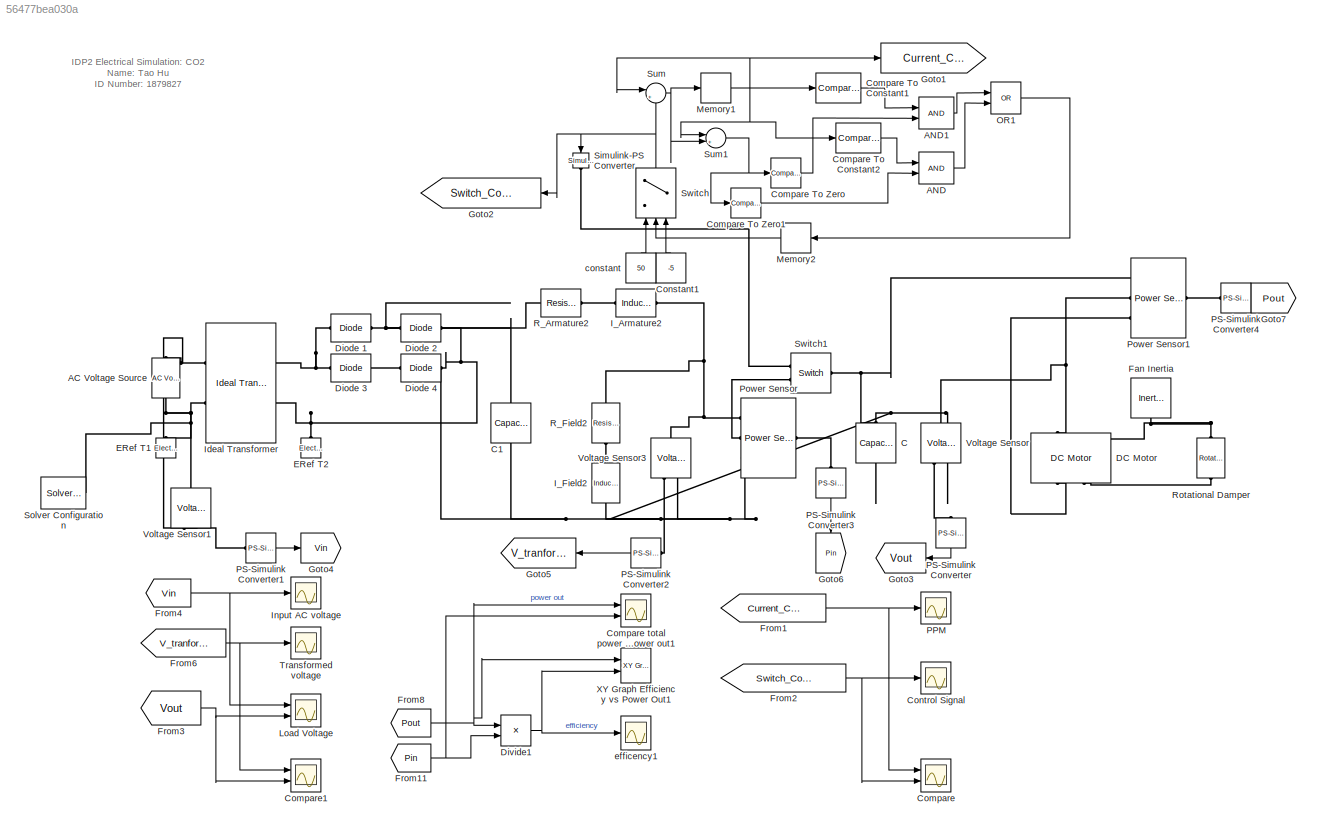
MODEL slx_56477bea030a
KIND model
CONFIG AbsTol = 1e-3
CONFIG EnableMultiTasking = on
CONFIG FixedStep = 0.0005
CONFIG MaxStep = 0.01
CONFIG MinStep = auto
CONFIG RelTol = 1e-3
CONFIG SampleTimeConstraint = Unconstrained
CONFIG Solver = FixedStepAuto
CONFIG SolverName = FixedStepAuto
CONFIG StartTime = 0.0
CONFIG StopTime = 0.5
BLOCK [Reference] AC Voltage Source  REF=fl_lib/Electrical/Electrical Sources/AC Voltage Source
  NameLocation = left
  Ports = [0, 0, 0, 0, 0, 1, 1]
  SourceBlock = fl_lib/Electrical/Electrical Sources/AC Voltage Source
  SourceProductBaseCode = SS
  SourceType = AC Voltage Source
BLOCK [Logic] AND
  AllPortsSameDT = off
  IconShape = distinctive
  OutDataTypeStr = boolean
  Ports = [2, 1]
BLOCK [Logic] AND1
  AllPortsSameDT = off
  IconShape = distinctive
  OutDataTypeStr = boolean
  Ports = [2, 1]
BLOCK [Reference] C  REF=fl_lib/Electrical/Electrical Elements/Capacitor
  NameLocation = left
  Ports = [0, 0, 0, 0, 0, 1, 1]
  SourceBlock = fl_lib/Electrical/Electrical Elements/Capacitor
  SourceProductBaseCode = SS
  SourceType = Capacitor
BLOCK [Reference] C1  REF=fl_lib/Electrical/Electrical Elements/Capacitor
  NameLocation = left
  Ports = [0, 0, 0, 0, 0, 1, 1]
  SourceBlock = fl_lib/Electrical/Electrical Elements/Capacitor
  SourceProductBaseCode = SS
  SourceType = Capacitor
BLOCK [Scope] Compare
  Floating = off
  NumInputPorts = 2
  Ports = [2]
  ScopeSpecificationString = Simulink.scopes.TimeScopeBlockCfg('CurrentConfiguration', extmgr.ConfigurationSet(extmgr.Configuration('Core','General UI',true),extmgr.Configuration('Core','Source UI',true),extmgr.Configuration('Sources','WiredSimulink',true,'DataLoggingVariableName','ScopeData3'),extmgr.Configuration('Visuals','Time Domain',true,'SerializedDisplays',{struct('MinYLimReal','-133.75','MaxYLimReal','1153.75','YLabe...<+1375ch>
BLOCK [Reference] Compare To Constant1  REF=simulink/Logic and Bit
Operations/Compare
To Constant
  Ports = [1, 1]
  SourceBlock = simulink/Logic and Bit\nOperations/Compare\nTo Constant
  SourceProductBaseCode = SL
  SourceType = Compare To Constant
BLOCK [Reference] Compare To Constant2  REF=simulink/Logic and Bit
Operations/Compare
To Constant
  Ports = [1, 1]
  SourceBlock = simulink/Logic and Bit\nOperations/Compare\nTo Constant
  SourceProductBaseCode = SL
  SourceType = Compare To Constant
BLOCK [Reference] Compare To Zero  REF=simulink/Logic and Bit
Operations/Compare
To Zero
  Ports = [1, 1]
  SourceBlock = simulink/Logic and Bit\nOperations/Compare\nTo Zero
  SourceProductBaseCode = SL
  SourceType = Compare To Zero
BLOCK [Reference] Compare To Zero1  REF=simulink/Logic and Bit
Operations/Compare
To Zero
  Ports = [1, 1]
  SourceBlock = simulink/Logic and Bit\nOperations/Compare\nTo Zero
  SourceProductBaseCode = SL
  SourceType = Compare To Zero
BLOCK [Scope] Compare total power vs power out1
  Floating = off
  NumInputPorts = 2
  Ports = [2]
  ScopeSpecificationString = Simulink.scopes.TimeScopeBlockCfg('CurrentConfiguration', extmgr.ConfigurationSet(extmgr.Configuration('Core','General UI',true),extmgr.Configuration('Core','Source UI',true),extmgr.Configuration('Sources','WiredSimulink',true,'DataLoggingVariableName','ScopeData1'),extmgr.Configuration('Visuals','Time Domain',true,'SerializedDisplays',{struct('MinYLimReal','-0.125','MaxYLimReal','1.125','YLabelRe...<+1456ch>
BLOCK [Scope] Compare1
  Floating = off
  NumInputPorts = 2
  Ports = [2]
  ScopeSpecificationString = Simulink.scopes.TimeScopeBlockCfg('CurrentConfiguration', extmgr.ConfigurationSet(extmgr.Configuration('Core','General UI',true),extmgr.Configuration('Core','Source UI',true),extmgr.Configuration('Sources','WiredSimulink',true,'DataLoggingVariableName','ScopeData5'),extmgr.Configuration('Visuals','Time Domain',true,'SerializedDisplays',{struct('MinYLimReal','-47262866.4728','MaxYLimReal','42536579...<+1498ch>
BLOCK [Constant] Constant1
  NameLocation = right
  Value = -5
BLOCK [Scope] Control Signal
  Floating = off
  NumInputPorts = 1
  Ports = [1]
  ScopeSpecificationString = Simulink.scopes.TimeScopeBlockCfg('CurrentConfiguration', extmgr.ConfigurationSet(extmgr.Configuration('Core','General UI',true),extmgr.Configuration('Core','Source UI',true),extmgr.Configuration('Sources','WiredSimulink',true,'DataLoggingLimitDataPoints',true,'DataLoggingSaveFormat','Array','DataLoggingDecimation','1','DataLoggingDecimateData',true,'DataLoggingVariableName','ScopeData1'),extmgr.C...<+1673ch>
BLOCK [Reference] DC Motor  REF=ee_lib/Electromechanical/Brushed Motors/DC Motor
  NameLocation = right
  Ports = [0, 0, 0, 0, 0, 2, 2]
  SourceBlock = ee_lib/Electromechanical/Brushed Motors/DC Motor
  SourceProductBaseCode = PS
  SourceType = DC Motor
BLOCK [Reference] Diode 1  REF=fl_lib/Electrical/Electrical Elements/Diode
  NameLocation = top
  Ports = [0, 0, 0, 0, 0, 1, 1]
  SourceBlock = fl_lib/Electrical/Electrical Elements/Diode
  SourceProductBaseCode = SS
  SourceType = Diode
BLOCK [Reference] Diode 2  REF=fl_lib/Electrical/Electrical Elements/Diode
  NameLocation = top
  Ports = [0, 0, 0, 0, 0, 1, 1]
  SourceBlock = fl_lib/Electrical/Electrical Elements/Diode
  SourceProductBaseCode = SS
  SourceType = Diode
BLOCK [Reference] Diode 3  REF=fl_lib/Electrical/Electrical Elements/Diode
  Ports = [0, 0, 0, 0, 0, 1, 1]
  SourceBlock = fl_lib/Electrical/Electrical Elements/Diode
  SourceProductBaseCode = SS
  SourceType = Diode
BLOCK [Reference] Diode 4  REF=fl_lib/Electrical/Electrical Elements/Diode
  Ports = [0, 0, 0, 0, 0, 1, 1]
  SourceBlock = fl_lib/Electrical/Electrical Elements/Diode
  SourceProductBaseCode = SS
  SourceType = Diode
BLOCK [Product] Divide1
  Inputs = */
  Ports = [2, 1]
BLOCK [Reference] ERef T1  REF=fl_lib/Electrical/Electrical Elements/Electrical Reference
  NameLocation = left
  Ports = [0, 0, 0, 0, 0, 1]
  SourceBlock = fl_lib/Electrical/Electrical Elements/Electrical Reference
  SourceProductBaseCode = SS
  SourceType = Electrical Reference
BLOCK [Reference] ERef T2  REF=fl_lib/Electrical/Electrical Elements/Electrical Reference
  NameLocation = right
  Ports = [0, 0, 0, 0, 0, 1]
  SourceBlock = fl_lib/Electrical/Electrical Elements/Electrical Reference
  SourceProductBaseCode = SS
  SourceType = Electrical Reference
BLOCK [Reference] Fan Inertia  REF=fl_lib/Mechanical/Rotational Elements/Inertia
  NameLocation = left
  Ports = [0, 0, 0, 0, 0, 1]
  SourceBlock = fl_lib/Mechanical/Rotational Elements/Inertia
  SourceProductBaseCode = SS
  SourceType = Inertia
BLOCK [From] From1
  GotoTag = Current_CO2_ppm
BLOCK [From] From11
  GotoTag = Pin
BLOCK [From] From2
  GotoTag = Switch_Control_Signal
BLOCK [From] From3
  GotoTag = Vout
BLOCK [From] From4
  GotoTag = Vin
BLOCK [From] From6
  GotoTag = V_tranformed
BLOCK [From] From8
  GotoTag = Pout
BLOCK [Goto] Goto1
  GotoTag = Current_CO2_ppm
BLOCK [Goto] Goto2
  GotoTag = Switch_Control_Signal
  NameLocation = top
BLOCK [Goto] Goto3
  GotoTag = Vout
  NameLocation = top
BLOCK [Goto] Goto4
  GotoTag = Vin
BLOCK [Goto] Goto5
  GotoTag = V_tranformed
  NameLocation = top
BLOCK [Goto] Goto6
  GotoTag = Pin
  NameLocation = left
BLOCK [Goto] Goto7
  GotoTag = Pout
BLOCK [Reference] I_Armature2  REF=fl_lib/Electrical/Electrical Elements/Inductor
  Ports = [0, 0, 0, 0, 0, 1, 1]
  SourceBlock = fl_lib/Electrical/Electrical Elements/Inductor
  SourceProductBaseCode = SS
  SourceType = Inductor
BLOCK [Reference] I_Field2  REF=fl_lib/Electrical/Electrical Elements/Inductor
  NameLocation = left
  Ports = [0, 0, 0, 0, 0, 1, 1]
  SourceBlock = fl_lib/Electrical/Electrical Elements/Inductor
  SourceProductBaseCode = SS
  SourceType = Inductor
BLOCK [Reference] Ideal Transformer  REF=fl_lib/Electrical/Electrical Elements/Ideal Transformer
  NameLocation = top
  Ports = [0, 0, 0, 0, 0, 2, 2]
  SourceBlock = fl_lib/Electrical/Electrical Elements/Ideal Transformer
  SourceProductBaseCode = SS
  SourceType = Ideal Transformer
BLOCK [Scope] Input AC voltage
  Floating = off
  NumInputPorts = 1
  Ports = [1]
  ScopeSpecificationString = Simulink.scopes.TimeScopeBlockCfg('CurrentConfiguration', extmgr.ConfigurationSet(extmgr.Configuration('Core','General UI',true),extmgr.Configuration('Core','Source UI',true),extmgr.Configuration('Sources','WiredSimulink',true,'DataLoggingVariableName','ScopeData2'),extmgr.Configuration('Visuals','Time Domain',true,'SerializedDisplays',{struct('MinYLimReal','-275.00000','MaxYLimReal','275.00000','...<+1395ch>
BLOCK [Scope] Load Voltage
  Floating = off
  NumInputPorts = 2
  Ports = [2]
  ScopeSpecificationString = Simulink.scopes.TimeScopeBlockCfg('CurrentConfiguration', extmgr.ConfigurationSet(extmgr.Configuration('Core','General UI',true),extmgr.Configuration('Core','Source UI',true),extmgr.Configuration('Sources','WiredSimulink',true,'DataLoggingLimitDataPoints',true,'DataLoggingSaveFormat','Array','DataLoggingDecimation','1','DataLoggingDecimateData',true,'DataLoggingVariableName','ScopeData7'),extmgr.C...<+1779ch>
BLOCK [Memory] Memory1
  InitialCondition = 1010
BLOCK [Memory] Memory2
  NameLocation = top
BLOCK [Logic] OR1
  AllPortsSameDT = off
  IconShape = distinctive
  Operator = OR
  OutDataTypeStr = boolean
  Ports = [2, 1]
BLOCK [Scope] PPM
  Floating = off
  NumInputPorts = 1
  Ports = [1]
  ScopeSpecificationString = Simulink.scopes.TimeScopeBlockCfg('CurrentConfiguration', extmgr.ConfigurationSet(extmgr.Configuration('Core','General UI',true),extmgr.Configuration('Core','Source UI',true),extmgr.Configuration('Sources','WiredSimulink',true,'DataLoggingLimitDataPoints',true,'DataLoggingSaveFormat','Array','DataLoggingDecimation','1','DataLoggingDecimateData',true),extmgr.Configuration('Visuals','Time Domain',tr...<+1660ch>
BLOCK [Reference] PS-Simulink Converter  REF=nesl_utility/PS-Simulink
Converter
  NameLocation = right
  Ports = [0, 1, 0, 0, 0, 1]
  SourceBlock = nesl_utility/PS-Simulink\nConverter
  SourceProductBaseCode = SS
  SourceType = PS-Simulink\nConverter
BLOCK [Reference] PS-Simulink Converter1  REF=nesl_utility/PS-Simulink
Converter
  NameLocation = top
  Ports = [0, 1, 0, 0, 0, 1]
  SourceBlock = nesl_utility/PS-Simulink\nConverter
  SourceProductBaseCode = SS
  SourceType = PS-Simulink\nConverter
BLOCK [Reference] PS-Simulink Converter2  REF=nesl_utility/PS-Simulink
Converter
  Ports = [0, 1, 0, 0, 0, 1]
  SourceBlock = nesl_utility/PS-Simulink\nConverter
  SourceProductBaseCode = SS
  SourceType = PS-Simulink\nConverter
BLOCK [Reference] PS-Simulink Converter3  REF=nesl_utility/PS-Simulink
Converter
  NameLocation = right
  Ports = [0, 1, 0, 0, 0, 1]
  SourceBlock = nesl_utility/PS-Simulink\nConverter
  SourceProductBaseCode = SS
  SourceType = PS-Simulink\nConverter
BLOCK [Reference] PS-Simulink Converter4  REF=nesl_utility/PS-Simulink
Converter
  NameLocation = top
  Ports = [0, 1, 0, 0, 0, 1]
  SourceBlock = nesl_utility/PS-Simulink\nConverter
  SourceProductBaseCode = SS
  SourceType = PS-Simulink\nConverter
BLOCK [Reference] Power Sensor  REF=ee_lib/Sensors &
Transducers/Power Sensor
  Ports = [0, 0, 0, 0, 0, 3, 1]
  SourceBlock = ee_lib/Sensors &\nTransducers/Power Sensor
  SourceProductBaseCode = PS
  SourceType = Power Sensor
BLOCK [Reference] Power Sensor1  REF=ee_lib/Sensors &
Transducers/Power Sensor
  Ports = [0, 0, 0, 0, 0, 3, 1]
  SourceBlock = ee_lib/Sensors &\nTransducers/Power Sensor
  SourceProductBaseCode = PS
  SourceType = Power Sensor
BLOCK [Reference] R_Armature2  REF=fl_lib/Electrical/Electrical Elements/Resistor
  Ports = [0, 0, 0, 0, 0, 1, 1]
  SourceBlock = fl_lib/Electrical/Electrical Elements/Resistor
  SourceProductBaseCode = SS
  SourceType = Resistor
BLOCK [Reference] R_Field2  REF=fl_lib/Electrical/Electrical Elements/Resistor
  NameLocation = left
  Ports = [0, 0, 0, 0, 0, 1, 1]
  SourceBlock = fl_lib/Electrical/Electrical Elements/Resistor
  SourceProductBaseCode = SS
  SourceType = Resistor
BLOCK [Reference] Rotational Damper  REF=fl_lib/Mechanical/Rotational Elements/Rotational Damper
  NameLocation = left
  Ports = [0, 0, 0, 0, 0, 1, 1]
  SourceBlock = fl_lib/Mechanical/Rotational Elements/Rotational Damper
  SourceProductBaseCode = SS
  SourceType = Rotational Damper
BLOCK [Reference] Simulink-PS Converter  REF=nesl_utility/Simulink-PS
Converter
  NameLocation = left
  Ports = [1, 0, 0, 0, 0, 0, 1]
  SourceBlock = nesl_utility/Simulink-PS\nConverter
  SourceProductBaseCode = SS
  SourceType = Simulink-PS\nConverter
BLOCK [Reference] Solver Configuration  REF=nesl_utility/Solver
Configuration
  Ports = [0, 0, 0, 0, 0, 0, 1]
  SourceBlock = nesl_utility/Solver\nConfiguration
  SourceProductBaseCode = SS
  SourceType = Solver\nConfiguration
BLOCK [Sum] Sum
  Inputs = |++
  Ports = [2, 1]
BLOCK [Sum] Sum1
  Inputs = |+-
  Ports = [2, 1]
BLOCK [Switch] Switch
  Criteria = u2 > Threshold
  InputSameDT = off
  NameLocation = right
  SaturateOnIntegerOverflow = off
BLOCK [Reference] Switch1  REF=fl_lib/Electrical/Electrical Elements/Switch
  Ports = [0, 0, 0, 0, 0, 1, 2]
  SourceBlock = fl_lib/Electrical/Electrical Elements/Switch
  SourceProductBaseCode = SS
  SourceType = Switch
BLOCK [Scope] Transformed voltage
  Floating = off
  NumInputPorts = 1
  Ports = [1]
  ScopeSpecificationString = Simulink.scopes.TimeScopeBlockCfg('CurrentConfiguration', extmgr.ConfigurationSet(extmgr.Configuration('Core','General UI',true),extmgr.Configuration('Core','Source UI',true),extmgr.Configuration('Sources','WiredSimulink',true,'DataLoggingVariableName','ScopeData1'),extmgr.Configuration('Visuals','Time Domain',true,'SerializedDisplays',{struct('MinYLimReal','-47262866.4728','MaxYLimReal','42536579...<+1466ch>
BLOCK [Reference] Voltage Sensor  REF=fl_lib/Electrical/Electrical Sensors/Voltage Sensor
  NameLocation = right
  Ports = [0, 0, 0, 0, 0, 1, 2]
  SourceBlock = fl_lib/Electrical/Electrical Sensors/Voltage Sensor
  SourceProductBaseCode = SS
  SourceType = Voltage Sensor
BLOCK [Reference] Voltage Sensor1  REF=fl_lib/Electrical/Electrical Sensors/Voltage Sensor
  NameLocation = right
  Ports = [0, 0, 0, 0, 0, 1, 2]
  SourceBlock = fl_lib/Electrical/Electrical Sensors/Voltage Sensor
  SourceProductBaseCode = SS
  SourceType = Voltage Sensor
BLOCK [Reference] Voltage Sensor3  REF=fl_lib/Electrical/Electrical Sensors/Voltage Sensor
  NameLocation = right
  Ports = [0, 0, 0, 0, 0, 1, 2]
  SourceBlock = fl_lib/Electrical/Electrical Sensors/Voltage Sensor
  SourceProductBaseCode = SS
  SourceType = Voltage Sensor
BLOCK [Reference] XY Graph Efficiency vs Power Out1  REF=simulink/Sinks/XY Graph
  Ports = [2]
  SourceBlock = simulink/Sinks/XY Graph
  SourceProductBaseCode = SL
  SourceType = XY scope.
BLOCK [Constant] constant
  NameLocation = right
  Value = 50
BLOCK [Scope] efficency1
  Floating = off
  NumInputPorts = 1
  Ports = [1]
  ScopeSpecificationString = Simulink.scopes.TimeScopeBlockCfg('CurrentConfiguration', extmgr.ConfigurationSet(extmgr.Configuration('Core','General UI',true),extmgr.Configuration('Core','Source UI',true),extmgr.Configuration('Sources','WiredSimulink',true,'DataLoggingVariableName','ScopeData3'),extmgr.Configuration('Visuals','Time Domain',true,'SerializedDisplays',{struct('MinYLimReal','0.61398','MaxYLimReal','0.70266','YLabe...<+1490ch>
ANNOTATION (root): IDP2 Electrical Simulation: CO2 Name: Tao Hu ID Number: 1879827
LINE AND1:1 -> OR1:1
LINE AND:1 -> OR1:2
LINE Compare To Constant1:1 -> AND1:1
LINE Compare To Constant2:1 -> AND:1
LINE Compare To Zero1:1 -> AND:2
LINE Compare To Zero:1 -> AND1:2
LINE Constant1:1 -> Switch:3
NET Divide1:1 -> XY Graph Efficiency vs Power Out1:2, efficency1:1
NET From11:1 -> Compare total power vs power out1:2, Divide1:2
NET From1:1 -> Compare:1, PPM:1
NET From2:1 -> Compare:2, Control Signal:1
NET From3:1 -> Compare1:2, Load Voltage:2
NET From4:1 -> Input AC voltage:1, Load Voltage:1
NET From6:1 -> Compare1:1, Transformed voltage:1
NET From8:1 -> Compare total power vs power out1:1, Divide1:1, XY Graph Efficiency vs Power Out1:1
NET Memory1:1 -> Compare To Constant1:1, Compare To Constant2:1, Goto1:1, Sum1:1, Sum:1
LINE Memory2:1 -> Switch:2
LINE OR1:1 -> Memory2:1
LINE PS-Simulink Converter1:1 -> Goto4:1
LINE PS-Simulink Converter2:1 -> Goto5:1
LINE PS-Simulink Converter3:1 -> Goto6:1
LINE PS-Simulink Converter4:1 -> Goto7:1
LINE PS-Simulink Converter:1 -> Goto3:1
NET Sum1:1 -> Compare To Zero1:1, Compare To Zero:1
NET Sum:1 -> Memory1:1, Sum1:2
NET Switch:1 -> Goto2:1, Simulink-PS Converter:1, Sum:2
LINE constant:1 -> Switch:1
PNET net1: AC Voltage Source:LConn1 -- Ideal Transformer:LConn1 -- Voltage Sensor1:RConn2
PNET net2: AC Voltage Source:RConn1 -- ERef T1:LConn1 -- Ideal Transformer:LConn2 -- Solver Configuration:RConn1 -- Voltage Sensor1:LConn1
PNET net3: C1:LConn1 -- Diode 1:RConn1 -- Diode 2:RConn1 -- R_Armature2:LConn1
PNET net4: C1:RConn1 -- C:RConn1 -- DC Motor:RConn1 -- Diode 3:LConn1 -- Diode 4:LConn1 -- I_Field2:RConn1 -- Power Sensor1:LConn3 -- Power Sensor:LConn3 -- Voltage Sensor3:RConn2 -- Voltage Sensor:RConn2
PNET net5: C:LConn1 -- Power Sensor1:LConn1 -- Switch1:LConn1
PNET net6: DC Motor:LConn1 -- Power Sensor1:LConn2 -- Voltage Sensor:LConn1
PNET net7: DC Motor:LConn2 -- Fan Inertia:LConn1 -- Rotational Damper:LConn1
PLINE DC Motor:RConn2 -- Rotational Damper:RConn1
PNET net8: Diode 1:LConn1 -- Diode 3:RConn1 -- Ideal Transformer:RConn1
PNET net9: Diode 2:LConn1 -- Diode 4:RConn1 -- ERef T2:LConn1 -- Ideal Transformer:RConn2
PLINE I_Armature2:LConn1 -- R_Armature2:RConn1
PNET net10: I_Armature2:RConn1 -- Power Sensor:LConn1 -- R_Field2:LConn1 -- Voltage Sensor3:LConn1
PLINE I_Field2:LConn1 -- R_Field2:RConn1
PLINE PS-Simulink Converter1:LConn1 -- Voltage Sensor1:RConn1
PLINE PS-Simulink Converter2:LConn1 -- Voltage Sensor3:RConn1
PLINE PS-Simulink Converter3:LConn1 -- Power Sensor:RConn1
PLINE PS-Simulink Converter4:LConn1 -- Power Sensor1:RConn1
PLINE PS-Simulink Converter:LConn1 -- Voltage Sensor:RConn1
PLINE Power Sensor:LConn2 -- Switch1:RConn2
PLINE Simulink-PS Converter:RConn1 -- Switch1:RConn1
note: NET lines group one-source signal fan-out (src -> all destinations, sorted); 1:1 wires keep LINE; PNET lines group multi-terminal physical nets as a canonical sorted terminal list (undirected conserving connections); 2-terminal nets keep the pairwise PLINE form
